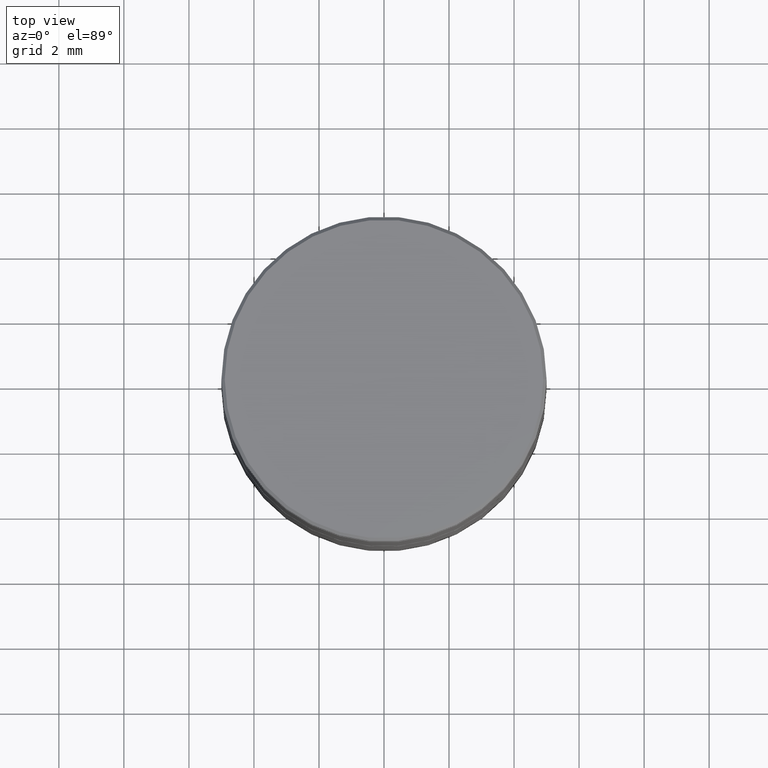
[diagram: clean part render]
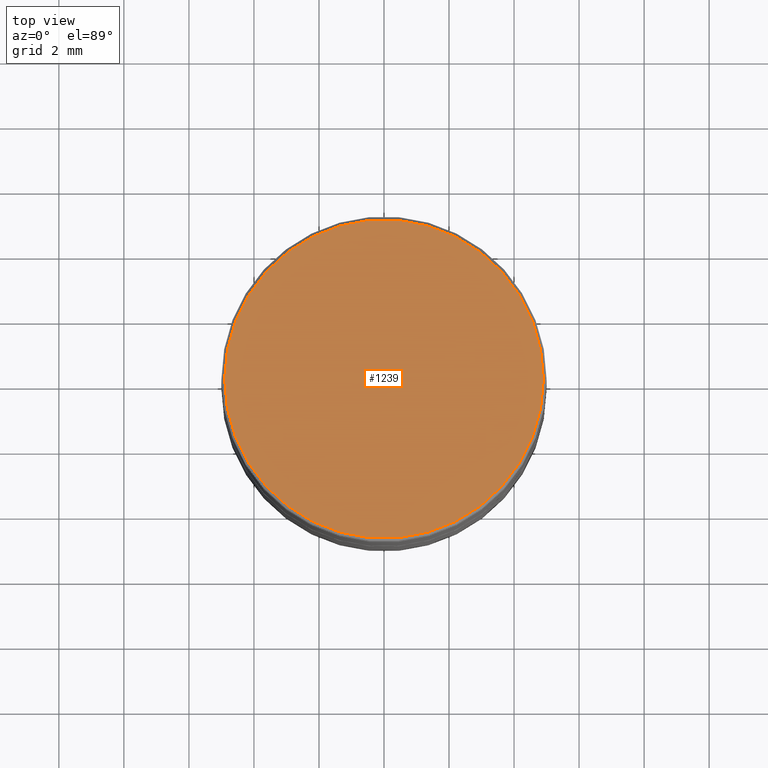
[diagram: same view with one face highlighted and labeled with its STEP entity id]
A machine part, top view. The second image highlights one B-rep face of the part: STEP entity #1239.
In plain terms, the highlighted planar face has unit normal (0, -0, 1).
Its self-contained STEP definition (entity closure, byte-faithful):
#79 = ORIENTED_EDGE ( 'NONE', *, *, #646, .T. ) ;
#95 = AXIS2_PLACEMENT_3D ( 'NONE', #1108, #604, #1248 ) ;
#99 = VERTEX_POINT ( 'NONE', #208 ) ;
#159 = AXIS2_PLACEMENT_3D ( 'NONE', #1227, #1022, #1016 ) ;
#208 = CARTESIAN_POINT ( 'NONE',  ( -4.900000000000004796, 0.000000000000000000, 0.000000000000000000 ) ) ;
#254 = PLANE ( 'NONE',  #95 ) ;
#373 = DIRECTION ( 'NONE',  ( -0.000000000000000000, -0.000000000000000000, 1.000000000000000000 ) ) ;
#480 = CARTESIAN_POINT ( 'NONE',  ( 0.000000000000000000, 0.000000000000000000, 0.000000000000000000 ) ) ;
#494 = VERTEX_POINT ( 'NONE', #670 ) ;
#556 = ORIENTED_EDGE ( 'NONE', *, *, #632, .T. ) ;
#574 = FACE_OUTER_BOUND ( 'NONE', #1096, .T. ) ;
#604 = DIRECTION ( 'NONE',  ( 0.000000000000000000, -0.000000000000000000, 1.000000000000000000 ) ) ;
#632 = EDGE_CURVE ( 'NONE', #494, #99, #1322, .T. ) ;
#646 = EDGE_CURVE ( 'NONE', #99, #494, #1211, .T. ) ;
#670 = CARTESIAN_POINT ( 'NONE',  ( 4.900000000000004796, 6.062001655779401469E-16, 0.000000000000000000 ) ) ;
#721 = AXIS2_PLACEMENT_3D ( 'NONE', #480, #373, #903 ) ;
#903 = DIRECTION ( 'NONE',  ( 1.000000000000000000, 0.000000000000000000, 0.000000000000000000 ) ) ;
#1016 = DIRECTION ( 'NONE',  ( 1.000000000000000000, 0.000000000000000000, 0.000000000000000000 ) ) ;
#1022 = DIRECTION ( 'NONE',  ( -0.000000000000000000, -0.000000000000000000, 1.000000000000000000 ) ) ;
#1096 = EDGE_LOOP ( 'NONE', ( #79, #556 ) ) ;
#1108 = CARTESIAN_POINT ( 'NONE',  ( 0.000000000000000000, 0.000000000000000000, 0.000000000000000000 ) ) ;
#1211 = CIRCLE ( 'NONE', #159, 4.900000000000004796 ) ;
#1227 = CARTESIAN_POINT ( 'NONE',  ( 0.000000000000000000, 0.000000000000000000, 0.000000000000000000 ) ) ;
#1239 = ADVANCED_FACE ( 'NONE', ( #574 ), #254, .T. ) ;
#1248 = DIRECTION ( 'NONE',  ( 1.000000000000000000, 0.000000000000000000, 0.000000000000000000 ) ) ;
#1322 = CIRCLE ( 'NONE', #721, 4.900000000000004796 ) ;